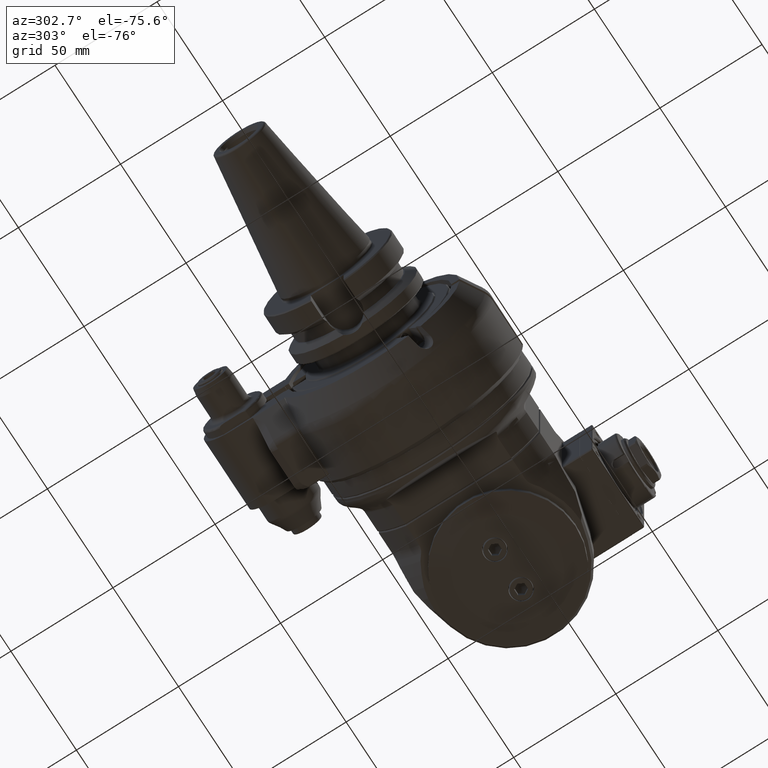
[diagram: clean part render]
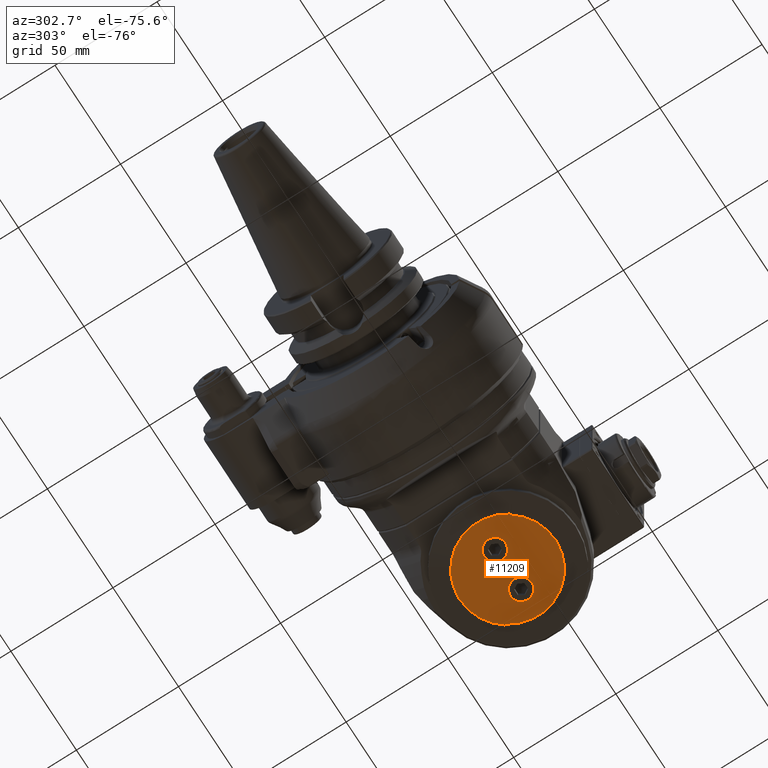
[diagram: same view with one face highlighted and labeled with its STEP entity id]
A machine part, auxiliary view. The second image highlights one B-rep face of the part: STEP entity #11209.
In plain terms, the highlighted planar face has unit normal (0, -0, 1).
Its self-contained STEP definition (entity closure, byte-faithful):
#442=FACE_BOUND('',#1914,.T.);
#443=FACE_BOUND('',#1915,.T.);
#648=CIRCLE('',#12115,23.66987298108);
#649=CIRCLE('',#12116,23.28350265056);
#650=CIRCLE('',#12117,5.25);
#651=CIRCLE('',#12118,5.25);
#1196=FACE_OUTER_BOUND('',#1913,.T.);
#1913=EDGE_LOOP('',(#8236,#8237,#8238,#8239));
#1914=EDGE_LOOP('',(#8240));
#1915=EDGE_LOOP('',(#8241));
#2716=LINE('',#17707,#3511);
#2719=LINE('',#17713,#3514);
#3511=VECTOR('',#13897,0.386370330515592);
#3514=VECTOR('',#13902,0.386370330515592);
#4798=VERTEX_POINT('',#17705);
#4799=VERTEX_POINT('',#17706);
#4800=VERTEX_POINT('',#17711);
#4801=VERTEX_POINT('',#17712);
#4802=VERTEX_POINT('',#17716);
#4803=VERTEX_POINT('',#17718);
#6076=EDGE_CURVE('',#4798,#4799,#2716,.T.);
#6079=EDGE_CURVE('',#4800,#4801,#2719,.T.);
#6080=EDGE_CURVE('',#4800,#4798,#648,.T.);
#6081=EDGE_CURVE('',#4799,#4801,#649,.T.);
#6082=EDGE_CURVE('',#4802,#4802,#650,.T.);
#6083=EDGE_CURVE('',#4803,#4803,#651,.T.);
#8236=ORIENTED_EDGE('',*,*,#6079,.F.);
#8237=ORIENTED_EDGE('',*,*,#6080,.T.);
#8238=ORIENTED_EDGE('',*,*,#6076,.T.);
#8239=ORIENTED_EDGE('',*,*,#6081,.T.);
#8240=ORIENTED_EDGE('',*,*,#6082,.T.);
#8241=ORIENTED_EDGE('',*,*,#6083,.T.);
#10774=PLANE('',#12114);
#11209=ADVANCED_FACE('',(#1196,#442,#443),#10774,.F.);
#12114=AXIS2_PLACEMENT_3D('',#17710,#13900,#13901);
#12115=AXIS2_PLACEMENT_3D('',#17714,#13903,#13904);
#12116=AXIS2_PLACEMENT_3D('',#17715,#13905,#13906);
#12117=AXIS2_PLACEMENT_3D('',#17717,#13907,#13908);
#12118=AXIS2_PLACEMENT_3D('',#17719,#13909,#13910);
#13897=DIRECTION('',(-0.819152044289016,0.,0.573576436351011));
#13900=DIRECTION('center_axis',(0.,1.,0.));
#13901=DIRECTION('ref_axis',(0.,0.,1.));
#13902=DIRECTION('',(0.819152044289016,0.,-0.573576436351011));
#13903=DIRECTION('center_axis',(0.,-1.,0.));
#13904=DIRECTION('ref_axis',(-0.819152044289016,0.,0.573576436351011));
#13905=DIRECTION('center_axis',(0.,-1.,0.));
#13906=DIRECTION('ref_axis',(0.819152044289016,0.,-0.573576436351011));
#13907=DIRECTION('center_axis',(0.,1.,0.));
#13908=DIRECTION('ref_axis',(0.,0.,-1.));
#13909=DIRECTION('center_axis',(0.,1.,0.));
#13910=DIRECTION('ref_axis',(0.,0.,-1.));
#17705=CARTESIAN_POINT('',(116.38922484051,-41.5,-13.57648139337));
#17706=CARTESIAN_POINT('',(116.07272879442,-41.5,-13.35486847608));
#17707=CARTESIAN_POINT('',(116.38922484051,-41.5,-13.57648139337));
#17710=CARTESIAN_POINT('Origin',(97.,-41.5,-16.5));
#17711=CARTESIAN_POINT('',(77.61077515949,-41.5,13.5764813934));
#17712=CARTESIAN_POINT('',(77.92727120558,-41.5,13.3548684761));
#17713=CARTESIAN_POINT('',(77.61077515949,-41.5,13.5764813934));
#17714=CARTESIAN_POINT('Origin',(97.,-41.5,0.));
#17715=CARTESIAN_POINT('Origin',(97.,-41.5,0.));
#17716=CARTESIAN_POINT('',(87.,-41.5,5.25));
#17717=CARTESIAN_POINT('Origin',(87.,-41.5,0.));
#17718=CARTESIAN_POINT('',(107.,-41.5,5.25));
#17719=CARTESIAN_POINT('Origin',(107.,-41.5,0.));